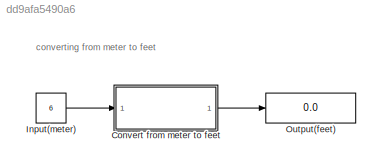
MODEL slx_dd9afa5490a6
KIND model
CONFIG AbsTol = auto
CONFIG EnableMultiTasking = off
CONFIG FixedStep = auto
CONFIG MaxStep = auto
CONFIG MinStep = auto
CONFIG RelTol = 1e-3
CONFIG SampleTimeConstraint = Unconstrained
CONFIG SolverName = VariableStepAuto
CONFIG StartTime = 0.0
CONFIG StopTime = 10.0
BLOCK [Constant]  Input(meter)
  Value = 6
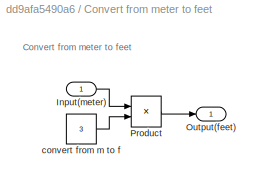
BLOCK [SubSystem] Convert from meter to feet
  Ports = [1, 1]
  RequestExecContextInheritance = off
BLOCK [Inport] Convert from meter to feet/Input(meter)
BLOCK [Outport] Convert from meter to feet/Output(feet)
BLOCK [Product] Convert from meter to feet/Product
  Ports = [2, 1]
BLOCK [Constant] Convert from meter to feet/convert from m to f
  Value = 3
BLOCK [Display] Output(feet)
  Decimation = 1
  Ports = [1]
ANNOTATION (root): converting from meter to feet
ANNOTATION Convert from meter to feet: Convert from meter to feet
LINE  Input(meter):1 -> Convert from meter to feet:1
LINE Convert from meter to feet/Input(meter):1 -> Convert from meter to feet/Product:1
LINE Convert from meter to feet/Product:1 -> Convert from meter to feet/Output(feet):1
LINE Convert from meter to feet/convert from m to f:1 -> Convert from meter to feet/Product:2
LINE Convert from meter to feet:1 -> Output(feet):1
